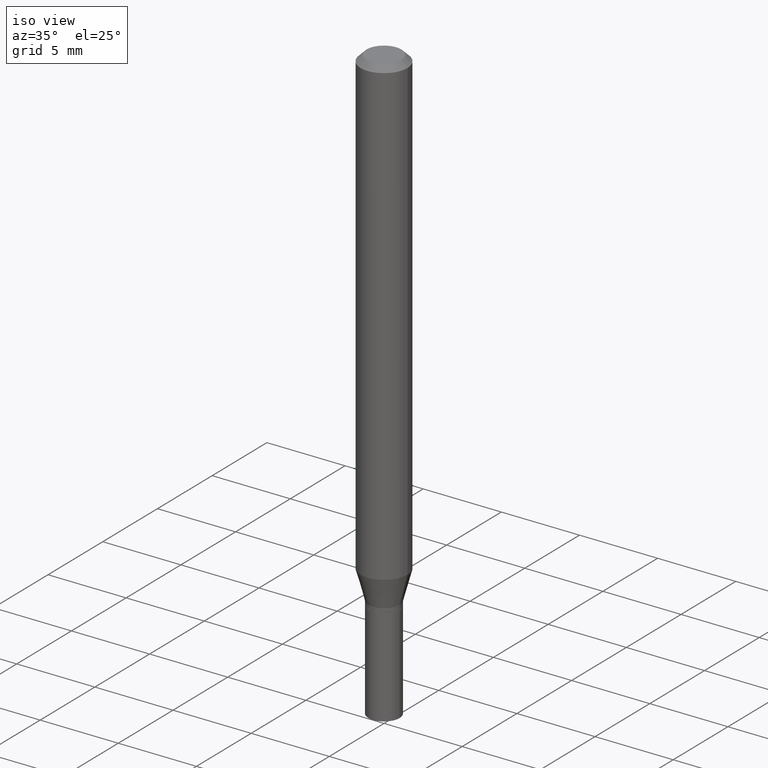
[diagram: clean part render]
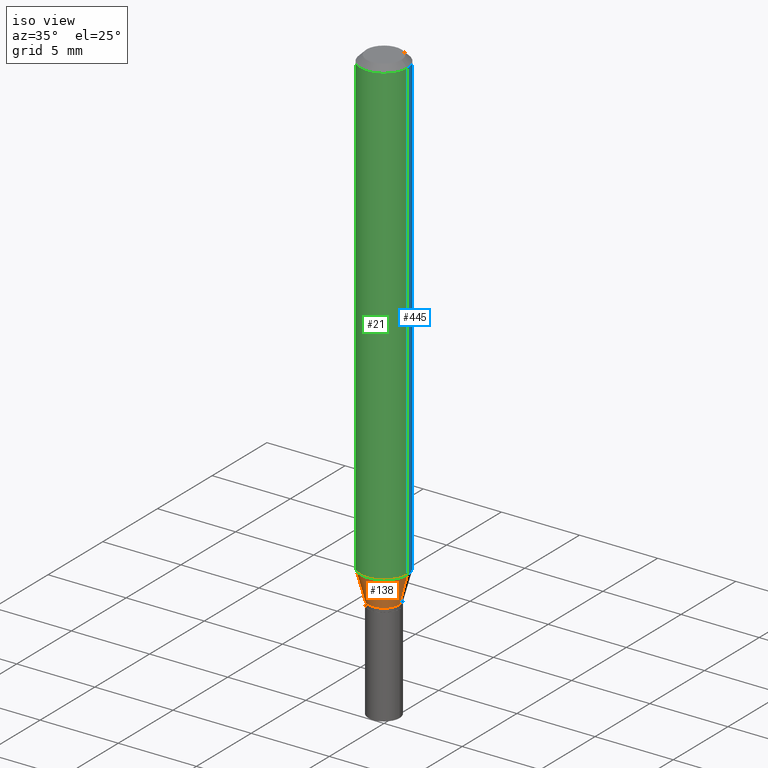
[diagram: same view with three faces highlighted in distinct colors, each labeled with its STEP entity id]
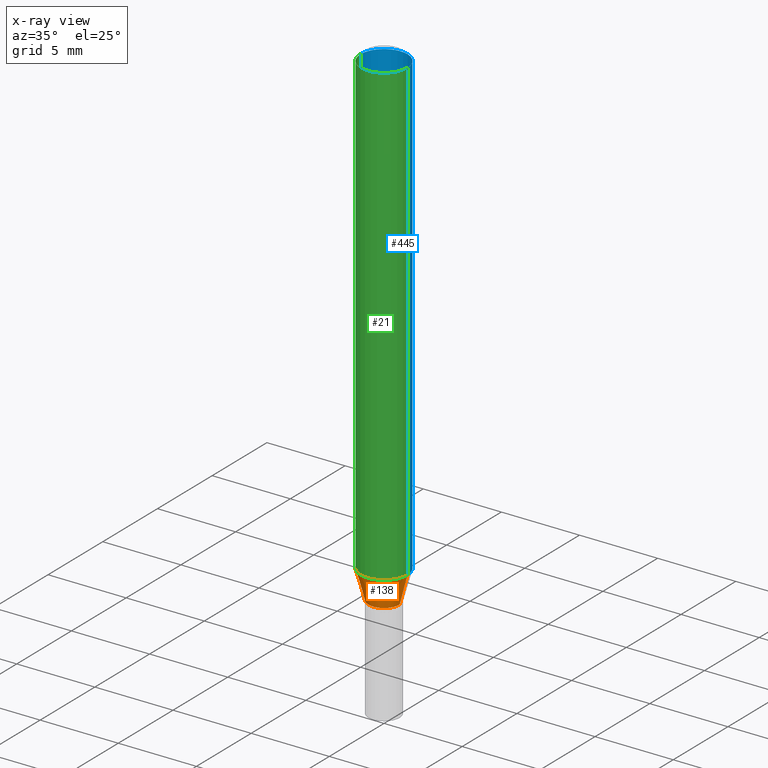
[diagram: x-ray of the same camera — body ghosted, the three highlighted faces saturated]
A machine part, iso view with three faces highlighted in distinct colors.
The next image is the same camera in x-ray (body ghosted, the three faces saturated) — at least one of them is partly hidden behind the body in this view.
Their STEP definitions:

[orange] entity #138 — the highlighted conical surface has half-angle 15 deg.
#6 = ORIENTED_EDGE ( 'NONE', *, *, #67, .F. ) ;
#10 = CONICAL_SURFACE ( 'NONE', #176, 0.03934999999999992670, 0.2617993877991502960 ) ;
#11 = CARTESIAN_POINT ( 'NONE',  ( 0.03934999999999992670, -4.611199404210140965E-15, -1.241999999999999993 ) ) ;
#47 = CARTESIAN_POINT ( 'NONE',  ( 3.037272257281939846E-29, -4.336419822843186836E-15, -1.241999999999999993 ) ) ;
#52 = CARTESIAN_POINT ( 'NONE',  ( -0.03934999999999992670, -3.858483497209341928E-15, -1.241999999999999993 ) ) ;
#67 = EDGE_CURVE ( 'NONE', #278, #376, #394, .T. ) ;
#96 = AXIS2_PLACEMENT_3D ( 'NONE', #123, #328, #406 ) ;
#113 = DIRECTION ( 'NONE',  ( -0.2588190451025216832, 5.211531920934551831E-15, 0.9659258262890679791 ) ) ;
#119 = EDGE_CURVE ( 'NONE', #422, #315, #163, .T. ) ;
#123 = CARTESIAN_POINT ( 'NONE',  ( 2.857477964771687293E-29, -4.079721223563434330E-15, -1.168478599090893244 ) ) ;
#130 = ORIENTED_EDGE ( 'NONE', *, *, #156, .F. ) ;
#138 = ADVANCED_FACE ( 'NONE', ( #369 ), #10, .T. ) ;
#156 = EDGE_CURVE ( 'NONE', #376, #315, #274, .T. ) ;
#162 = CARTESIAN_POINT ( 'NONE',  ( -0.05904999999999999832, -3.660145738097095626E-15, -1.168478599090893244 ) ) ;
#163 = LINE ( 'NONE', #11, #182 ) ;
#176 = AXIS2_PLACEMENT_3D ( 'NONE', #47, #335, #236 ) ;
#182 = VECTOR ( 'NONE', #259, 39.37007874015748143 ) ;
#196 = CARTESIAN_POINT ( 'NONE',  ( 3.037272257281939846E-29, -4.336419822843186836E-15, -1.241999999999999993 ) ) ;
#214 = CIRCLE ( 'NONE', #305, 0.03934999999999992670 ) ;
#224 = VECTOR ( 'NONE', #113, 39.37007874015748143 ) ;
#230 = DIRECTION ( 'NONE',  ( -2.445468806185136597E-29, 3.491481338843145583E-15, 1.000000000000000000 ) ) ;
#236 = DIRECTION ( 'NONE',  ( 1.000000000000000000, -6.982962677686270655E-15, 0.000000000000000000 ) ) ;
#252 = CARTESIAN_POINT ( 'NONE',  ( -0.03934999999999992670, -4.056821256321588230E-15, -1.241999999999999993 ) ) ;
#253 = CARTESIAN_POINT ( 'NONE',  ( 0.05904999999999999832, -4.492065169680809250E-15, -1.168478599090893244 ) ) ;
#259 = DIRECTION ( 'NONE',  ( 0.2588190451025216832, 1.565188264969619798E-15, 0.9659258262890679791 ) ) ;
#272 = ORIENTED_EDGE ( 'NONE', *, *, #339, .T. ) ;
#274 = CIRCLE ( 'NONE', #96, 0.05904999999999999832 ) ;
#278 = VERTEX_POINT ( 'NONE', #52 ) ;
#298 = DIRECTION ( 'NONE',  ( 1.000000000000000000, -6.982962677686270655E-15, 0.000000000000000000 ) ) ;
#305 = AXIS2_PLACEMENT_3D ( 'NONE', #196, #230, #298 ) ;
#315 = VERTEX_POINT ( 'NONE', #253 ) ;
#328 = DIRECTION ( 'NONE',  ( -2.445468806185136597E-29, 3.491481338843145583E-15, 1.000000000000000000 ) ) ;
#335 = DIRECTION ( 'NONE',  ( -2.445468806185136597E-29, 3.491481338843145583E-15, 1.000000000000000000 ) ) ;
#339 = EDGE_CURVE ( 'NONE', #278, #422, #214, .T. ) ;
#357 = ORIENTED_EDGE ( 'NONE', *, *, #119, .T. ) ;
#369 = FACE_OUTER_BOUND ( 'NONE', #379, .T. ) ;
#376 = VERTEX_POINT ( 'NONE', #162 ) ;
#379 = EDGE_LOOP ( 'NONE', ( #6, #272, #357, #130 ) ) ;
#394 = LINE ( 'NONE', #252, #224 ) ;
#406 = DIRECTION ( 'NONE',  ( 1.000000000000000000, -6.982962677686273021E-15, 0.000000000000000000 ) ) ;
#407 = CARTESIAN_POINT ( 'NONE',  ( 0.03934999999999992670, -4.611199404210140965E-15, -1.241999999999999993 ) ) ;
#422 = VERTEX_POINT ( 'NONE', #407 ) ;

[blue] entity #445 — the highlighted cylindrical surface (edge-blend (fillet) strip) has radius 1.4999 mm, axis along (-0, 0, 1).
#7 = CARTESIAN_POINT ( 'NONE',  ( 3.668203209277705088E-31, -5.237222008264718399E-17, -0.01499999999999999944 ) ) ;
#25 = ORIENTED_EDGE ( 'NONE', *, *, #103, .F. ) ;
#35 = CIRCLE ( 'NONE', #102, 0.05904999999999999832 ) ;
#36 = LINE ( 'NONE', #183, #205 ) ;
#57 = CARTESIAN_POINT ( 'NONE',  ( 0.000000000000000000, 0.000000000000000000, 0.000000000000000000 ) ) ;
#62 = CIRCLE ( 'NONE', #246, 0.05905000000000001914 ) ;
#81 = CARTESIAN_POINT ( 'NONE',  ( -0.05905000000000002608, -1.646471236356701803E-15, -0.01499999999999999944 ) ) ;
#102 = AXIS2_PLACEMENT_3D ( 'NONE', #299, #444, #378 ) ;
#103 = EDGE_CURVE ( 'NONE', #315, #392, #36, .T. ) ;
#105 = VERTEX_POINT ( 'NONE', #81 ) ;
#117 = EDGE_CURVE ( 'NONE', #392, #105, #62, .T. ) ;
#125 = VECTOR ( 'NONE', #409, 39.37007874015748143 ) ;
#148 = EDGE_CURVE ( 'NONE', #315, #376, #35, .T. ) ;
#162 = CARTESIAN_POINT ( 'NONE',  ( -0.05904999999999999832, -3.660145738097095626E-15, -1.168478599090893244 ) ) ;
#164 = EDGE_LOOP ( 'NONE', ( #458, #199, #348, #25 ) ) ;
#165 = CARTESIAN_POINT ( 'NONE',  ( -0.05905000000000000526, 4.195754854663391971E-16, -2.904631170795522242E-30 ) ) ;
#183 = CARTESIAN_POINT ( 'NONE',  ( 0.05905000000000000526, -4.123439461173741313E-16, 2.879382386107500571E-30 ) ) ;
#191 = CYLINDRICAL_SURFACE ( 'NONE', #287, 0.05905000000000000526 ) ;
#199 = ORIENTED_EDGE ( 'NONE', *, *, #370, .T. ) ;
#200 = CARTESIAN_POINT ( 'NONE',  ( 0.05905000000000001914, -4.647161662000214077E-16, -0.01499999999999999944 ) ) ;
#205 = VECTOR ( 'NONE', #283, 39.37007874015748143 ) ;
#231 = DIRECTION ( 'NONE',  ( -2.445468806185136597E-29, 3.491481338843145583E-15, 1.000000000000000000 ) ) ;
#246 = AXIS2_PLACEMENT_3D ( 'NONE', #7, #231, #297 ) ;
#253 = CARTESIAN_POINT ( 'NONE',  ( 0.05904999999999999832, -4.492065169680809250E-15, -1.168478599090893244 ) ) ;
#283 = DIRECTION ( 'NONE',  ( -2.445468806185136877E-29, 3.491481338843145188E-15, 1.000000000000000000 ) ) ;
#287 = AXIS2_PLACEMENT_3D ( 'NONE', #57, #446, #364 ) ;
#296 = LINE ( 'NONE', #165, #125 ) ;
#297 = DIRECTION ( 'NONE',  ( 1.000000000000000000, -6.982962677686266711E-15, 0.000000000000000000 ) ) ;
#299 = CARTESIAN_POINT ( 'NONE',  ( 2.857477964771687293E-29, -4.079721223563434330E-15, -1.168478599090893244 ) ) ;
#315 = VERTEX_POINT ( 'NONE', #253 ) ;
#348 = ORIENTED_EDGE ( 'NONE', *, *, #117, .F. ) ;
#364 = DIRECTION ( 'NONE',  ( 1.000000000000000000, -6.982962677686267499E-15, 4.876176775795936353E-29 ) ) ;
#370 = EDGE_CURVE ( 'NONE', #376, #105, #296, .T. ) ;
#376 = VERTEX_POINT ( 'NONE', #162 ) ;
#378 = DIRECTION ( 'NONE',  ( 1.000000000000000000, -6.982962677686273021E-15, 0.000000000000000000 ) ) ;
#392 = VERTEX_POINT ( 'NONE', #200 ) ;
#409 = DIRECTION ( 'NONE',  ( -2.445468806185136877E-29, 3.491481338843145188E-15, 1.000000000000000000 ) ) ;
#443 = FACE_OUTER_BOUND ( 'NONE', #164, .T. ) ;
#444 = DIRECTION ( 'NONE',  ( -2.445468806185136597E-29, 3.491481338843145583E-15, 1.000000000000000000 ) ) ;
#445 = ADVANCED_FACE ( 'NONE', ( #443 ), #191, .T. ) ;
#446 = DIRECTION ( 'NONE',  ( -2.445468806185136597E-29, 3.491481338843145583E-15, 1.000000000000000000 ) ) ;
#458 = ORIENTED_EDGE ( 'NONE', *, *, #148, .T. ) ;

[green] entity #21 — the highlighted cylindrical surface (edge-blend (fillet) strip) has radius 1.4999 mm, axis along (-0, 0, 1).
#19 = ORIENTED_EDGE ( 'NONE', *, *, #370, .F. ) ;
#21 = ADVANCED_FACE ( 'NONE', ( #45 ), #217, .T. ) ;
#36 = LINE ( 'NONE', #183, #205 ) ;
#42 = EDGE_CURVE ( 'NONE', #105, #392, #342, .T. ) ;
#45 = FACE_OUTER_BOUND ( 'NONE', #300, .T. ) ;
#76 = DIRECTION ( 'NONE',  ( -2.445468806185136597E-29, 3.491481338843145583E-15, 1.000000000000000000 ) ) ;
#80 = AXIS2_PLACEMENT_3D ( 'NONE', #247, #76, #324 ) ;
#81 = CARTESIAN_POINT ( 'NONE',  ( -0.05905000000000002608, -1.646471236356701803E-15, -0.01499999999999999944 ) ) ;
#96 = AXIS2_PLACEMENT_3D ( 'NONE', #123, #328, #406 ) ;
#103 = EDGE_CURVE ( 'NONE', #315, #392, #36, .T. ) ;
#105 = VERTEX_POINT ( 'NONE', #81 ) ;
#106 = DIRECTION ( 'NONE',  ( -2.445468806185136597E-29, 3.491481338843145583E-15, 1.000000000000000000 ) ) ;
#123 = CARTESIAN_POINT ( 'NONE',  ( 2.857477964771687293E-29, -4.079721223563434330E-15, -1.168478599090893244 ) ) ;
#125 = VECTOR ( 'NONE', #409, 39.37007874015748143 ) ;
#156 = EDGE_CURVE ( 'NONE', #376, #315, #274, .T. ) ;
#162 = CARTESIAN_POINT ( 'NONE',  ( -0.05904999999999999832, -3.660145738097095626E-15, -1.168478599090893244 ) ) ;
#165 = CARTESIAN_POINT ( 'NONE',  ( -0.05905000000000000526, 4.195754854663391971E-16, -2.904631170795522242E-30 ) ) ;
#172 = ORIENTED_EDGE ( 'NONE', *, *, #103, .T. ) ;
#183 = CARTESIAN_POINT ( 'NONE',  ( 0.05905000000000000526, -4.123439461173741313E-16, 2.879382386107500571E-30 ) ) ;
#185 = DIRECTION ( 'NONE',  ( 1.000000000000000000, -6.982962677686267499E-15, 4.876176775795936353E-29 ) ) ;
#200 = CARTESIAN_POINT ( 'NONE',  ( 0.05905000000000001914, -4.647161662000214077E-16, -0.01499999999999999944 ) ) ;
#205 = VECTOR ( 'NONE', #283, 39.37007874015748143 ) ;
#217 = CYLINDRICAL_SURFACE ( 'NONE', #359, 0.05905000000000000526 ) ;
#247 = CARTESIAN_POINT ( 'NONE',  ( 3.668203209277705088E-31, -5.237222008264718399E-17, -0.01499999999999999944 ) ) ;
#251 = CARTESIAN_POINT ( 'NONE',  ( 0.000000000000000000, 0.000000000000000000, 0.000000000000000000 ) ) ;
#253 = CARTESIAN_POINT ( 'NONE',  ( 0.05904999999999999832, -4.492065169680809250E-15, -1.168478599090893244 ) ) ;
#271 = ORIENTED_EDGE ( 'NONE', *, *, #42, .F. ) ;
#274 = CIRCLE ( 'NONE', #96, 0.05904999999999999832 ) ;
#283 = DIRECTION ( 'NONE',  ( -2.445468806185136877E-29, 3.491481338843145188E-15, 1.000000000000000000 ) ) ;
#296 = LINE ( 'NONE', #165, #125 ) ;
#300 = EDGE_LOOP ( 'NONE', ( #19, #453, #172, #271 ) ) ;
#315 = VERTEX_POINT ( 'NONE', #253 ) ;
#324 = DIRECTION ( 'NONE',  ( 1.000000000000000000, -6.982962677686266711E-15, 0.000000000000000000 ) ) ;
#328 = DIRECTION ( 'NONE',  ( -2.445468806185136597E-29, 3.491481338843145583E-15, 1.000000000000000000 ) ) ;
#342 = CIRCLE ( 'NONE', #80, 0.05905000000000001914 ) ;
#359 = AXIS2_PLACEMENT_3D ( 'NONE', #251, #106, #185 ) ;
#370 = EDGE_CURVE ( 'NONE', #376, #105, #296, .T. ) ;
#376 = VERTEX_POINT ( 'NONE', #162 ) ;
#392 = VERTEX_POINT ( 'NONE', #200 ) ;
#406 = DIRECTION ( 'NONE',  ( 1.000000000000000000, -6.982962677686273021E-15, 0.000000000000000000 ) ) ;
#409 = DIRECTION ( 'NONE',  ( -2.445468806185136877E-29, 3.491481338843145188E-15, 1.000000000000000000 ) ) ;
#453 = ORIENTED_EDGE ( 'NONE', *, *, #156, .T. ) ;